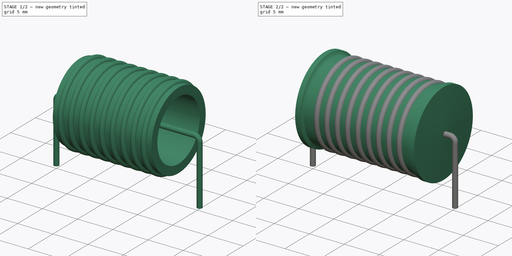
[diagram: build sequence overview — one tinted view per stage of 2, left to right]
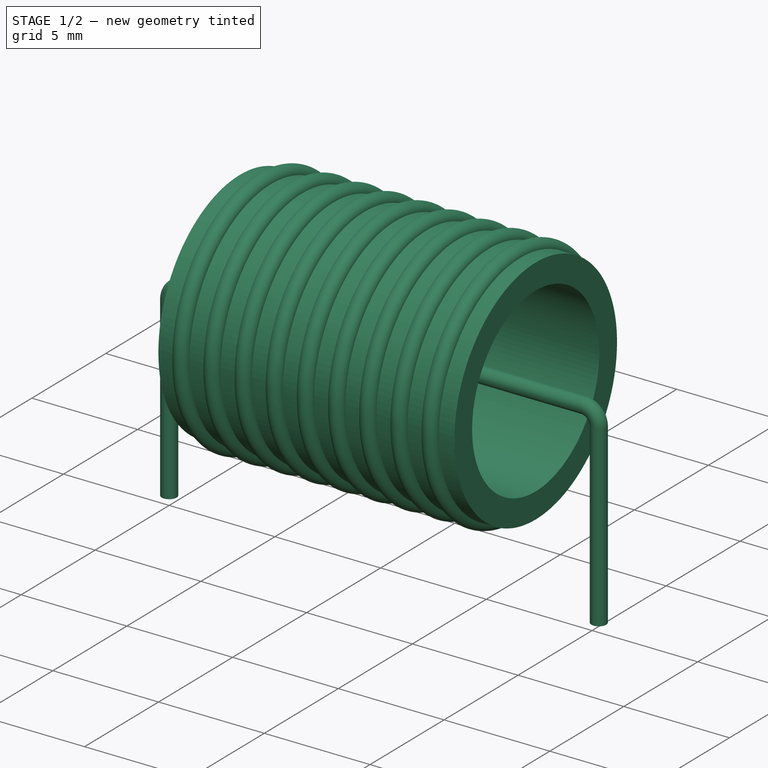
[diagram: stage 1 of 2 — iso view after this stage's code; geometry added in this stage tinted green]
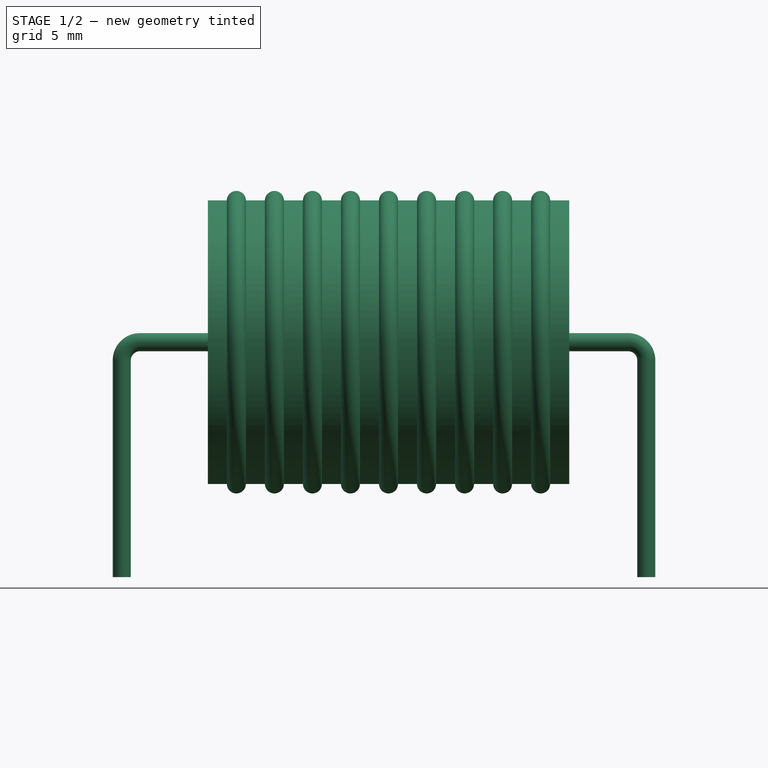
[diagram: stage 1 of 2 — front view after this stage's code; geometry added in this stage tinted green]
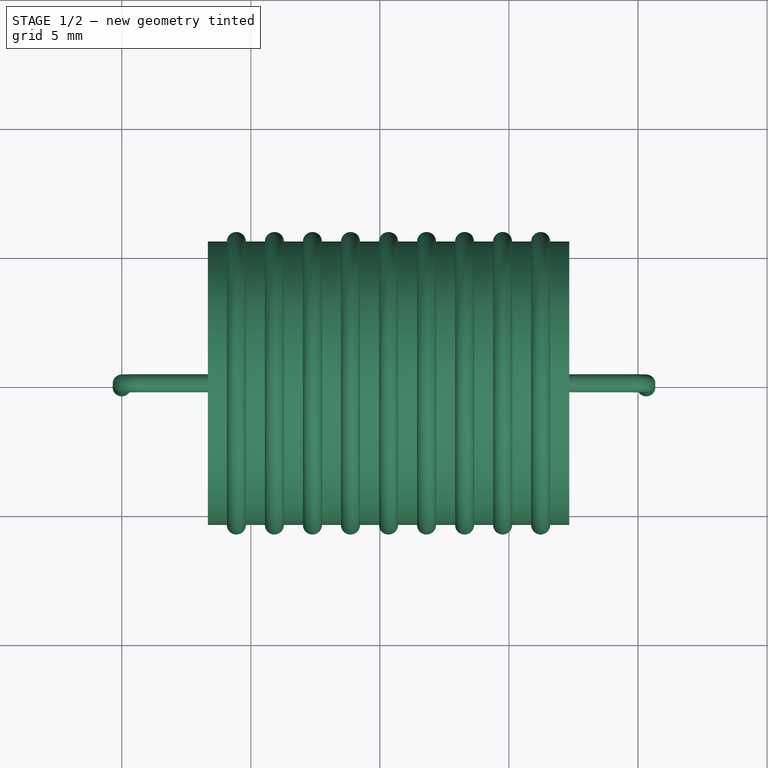
[diagram: stage 1 of 2 — top view after this stage's code; geometry added in this stage tinted green]
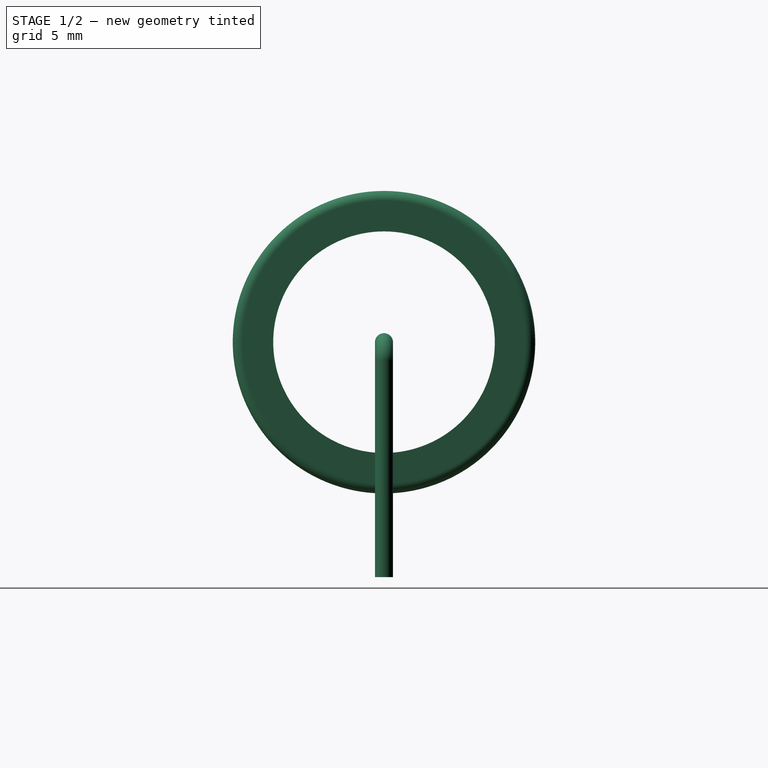
[diagram: stage 1 of 2 — right view after this stage's code; geometry added in this stage tinted green]
FCSTD DOCUMENT  (FreeCAD 0.16R6703 (Git))
Label: L_Axial_L17.5mm_D12.0mm_P20.32mm_Horizontal_Vishay_IM-10-46
License: All rights reserved
LicenseURL: http://en.wikipedia.org/wiki/All_rights_reserved
objects: Sketcher::SketchObject×4, PartDesign::Revolution×2, Spreadsheet::Sheet×1, Part::Sweep×1
note: 9 computed .brp shape members not serialized (recipe doc carries the construction recipe); baked Part::Feature solids carry a one-line shape summary decoded from their .brp

FEATURE [Spreadsheet::Sheet] Spreadsheet  label="dimensions"
  cells = A1=L; B1(L)=17.5; A2=d; B2(d)=12; C2=0; A3=RM; B3(RM)=20.32; C3=0; A4=d_wire; B4(d_wire)=0.7
FEATURE [Sketcher::SketchObject] Sketch
  Placement = pos=(0,0,-2) rot=(0,0,1;0rad)
  expr: Constraints[1] = dimensions.d_wire / 2
  sketch-geometry (1):
    g0: Circle CenterX=0 CenterY=0 CenterZ=0 NormalX=0 NormalY=0 NormalZ=1 Radius=0.35
  constraints (2):
    c: Coincident(g0,g-1)
    c: Radius(g0) = 0.35
FEATURE [Part::Sweep] Sweep
  Frenet = false
  Sections = -> [Sketch]
  Solid = true
  Spine = -> Sketch001
  Transition = 1
FEATURE [Sketcher::SketchObject] Sketch003  label="Axis001"
  Placement = pos=(0,0,0) rot=(1,0,0;1.5708rad)
  expr: Constraints[83] = dimensions.L * 0.8 / 19
  expr: Constraints[81] = dimensions.L * 0.8 / 19 / 2
  expr: Constraints[62] = dimensions.d / 2 - dimensions.L * 0.029
  expr: Constraints[70] = dimensions.d * 0.1
  expr: Constraints[78] = dimensions.L * 0.8 / 19 / 2
  expr: Constraints[6] = dimensions.d / 2 + 0.1
  expr: Constraints[72] = dimensions.L * 0.08500000000000001
  expr: Constraints[76] = dimensions.L * 0.8 / 19 / 2
  expr: Constraints[37] = dimensions.L * 0.8 / 19 / 2
  expr: Constraints[5] = (dimensions.RM - dimensions.L * 0.95) / 2
  expr: Constraints[75] = dimensions.L * 0.8 / 19 / 2
  expr: Constraints[80] = dimensions.L * 0.8 / 19 / 2
  expr: Constraints[79] = dimensions.L * 0.8 / 19 / 2
  expr: Constraints[82] = dimensions.L * 0.8 / 19 / 2
  expr: Constraints[77] = dimensions.L * 0.8 / 19 / 2
  sketch-geometry (26):
    g0: LineSegment [constr] StartX=1.8475 StartY=6.1 StartZ=0 EndX=1.8475 EndY=0 EndZ=0
    g1: LineSegment [constr] StartX=1.8475 StartY=0 StartZ=0 EndX=0 EndY=0 EndZ=0
    g2: LineSegment [constr] StartX=106.607 StartY=-10.5398 StartZ=0 EndX=-91.3675 EndY=-10.5398 EndZ=0
    g3: LineSegment [constr] StartX=1.8475 StartY=6.1 StartZ=0 EndX=11.2525 EndY=6.1 EndZ=0
    g4: ArcOfCircle CenterX=4.44026 CenterY=11.5925 CenterZ=0 NormalX=0 NormalY=0 NormalZ=1 Radius=0.368421 StartAngle=0 EndAngle=3.14159
    g5: ArcOfCircle CenterX=5.91395 CenterY=11.5925 CenterZ=0 NormalX=0 NormalY=0 NormalZ=1 Radius=0.368421 StartAngle=0 EndAngle=3.14159
    g6: ArcOfCircle CenterX=7.38763 CenterY=11.5925 CenterZ=0 NormalX=0 NormalY=0 NormalZ=1 Radius=0.368421 StartAngle=0 EndAngle=3.14159
    g7: ArcOfCircle CenterX=8.86132 CenterY=11.5925 CenterZ=0 NormalX=0 NormalY=0 NormalZ=1 Radius=0.368421 StartAngle=0 EndAngle=3.14159
    g8: ArcOfCircle CenterX=10.335 CenterY=11.5925 CenterZ=0 NormalX=0 NormalY=0 NormalZ=1 Radius=0.368421 StartAngle=0 EndAngle=3.14159
    g9: ArcOfCircle CenterX=11.8087 CenterY=11.5925 CenterZ=0 NormalX=0 NormalY=0 NormalZ=1 Radius=0.368421 StartAngle=0 EndAngle=3.14159
    g10: ArcOfCircle CenterX=13.2824 CenterY=11.5925 CenterZ=0 NormalX=0 NormalY=0 NormalZ=1 Radius=0.368421 StartAngle=0 EndAngle=3.14159
    g11: ArcOfCircle CenterX=14.7561 CenterY=11.5925 CenterZ=0 NormalX=0 NormalY=0 NormalZ=1 Radius=0.368421 StartAngle=0 EndAngle=3.14159
    g12: ArcOfCircle CenterX=16.2297 CenterY=11.5925 CenterZ=0 NormalX=0 NormalY=0 NormalZ=1 Radius=0.368421 StartAngle=0 EndAngle=3.14159
    g13: LineSegment StartX=3.335 StartY=11.5925 StartZ=0 EndX=4.07184 EndY=11.5925 EndZ=0
    g14: LineSegment StartX=4.80868 StartY=11.5925 StartZ=0 EndX=5.54553 EndY=11.5925 EndZ=0
    g15: LineSegment StartX=6.28237 StartY=11.5925 StartZ=0 EndX=7.01921 EndY=11.5925 EndZ=0
    g16: LineSegment StartX=7.75605 StartY=11.5925 StartZ=0 EndX=8.49289 EndY=11.5925 EndZ=0
    g17: LineSegment StartX=9.22974 StartY=11.5925 StartZ=0 EndX=9.96658 EndY=11.5925 EndZ=0
    g18: LineSegment StartX=10.7034 StartY=11.5925 StartZ=0 EndX=11.4403 EndY=11.5925 EndZ=0
    g19: LineSegment StartX=12.1771 StartY=11.5925 StartZ=0 EndX=12.9139 EndY=11.5925 EndZ=0
    g20: LineSegment StartX=13.6508 StartY=11.5925 StartZ=0 EndX=14.3876 EndY=11.5925 EndZ=0
    g21: LineSegment StartX=15.1245 StartY=11.5925 StartZ=0 EndX=15.8613 EndY=11.5925 EndZ=0
    g22: LineSegment StartX=16.5982 StartY=11.5925 StartZ=0 EndX=17.335 EndY=11.5925 EndZ=0
    g23: LineSegment StartX=3.335 StartY=11.5925 StartZ=0 EndX=3.335 EndY=10.3925 EndZ=0
    g24: LineSegment StartX=3.335 StartY=10.3925 StartZ=0 EndX=17.335 EndY=10.3925 EndZ=0
    g25: LineSegment StartX=17.335 StartY=10.3925 StartZ=0 EndX=17.335 EndY=11.5925 EndZ=0
  constraints (84):
    c: DistanceX(g0,g3) = 9.405
    c: Vertical(g0)
    c: Coincident(g1,g0)
    c: Coincident(g1,g-1)
    c: Horizontal(g1)
    c: DistanceX(g1,g1) = 1.8475
    c: DistanceY(g0,g0) = 6.1
    c: Coincident(g13,g4)
    c: Coincident(g14,g4)
    c: Coincident(g14,g5)
    c: Coincident(g15,g5)
    c: Coincident(g15,g6)
    c: Coincident(g16,g6)
    c: Coincident(g16,g7)
    c: Coincident(g17,g7)
    c: Coincident(g17,g8)
    c: Horizontal(g17)
    c: Coincident(g18,g8)
    c: Coincident(g18,g9)
    c: Coincident(g19,g9)
    c: Coincident(g19,g10)
    c: Coincident(g20,g11)
    c: Horizontal(g20)
    c: Coincident(g21,g11)
    c: Coincident(g21,g12)
    c: Horizontal(g21)
    c: Horizontal(g22)
    c: Equal(g14,g13)
    c: Equal(g13,g15)
    c: Equal(g15,g16)
    c: Equal(g16,g17)
    c: Equal(g17,g18)
    c: Equal(g18,g19)
    c: Equal(g19,g20)
    c: Equal(g20,g21)
    c: Equal(g21,g22)
    c: Coincident(g10,g20)
    c: Radius(g8) = 0.368421
    c: Coincident(g22,g12)
    c: Horizontal(g14)
    c: Horizontal(g15)
    c: Horizontal(g16)
    c: Horizontal(g18)
    c: Horizontal(g19)
    c: DistanceY(g12,g12) = 0
    c: DistanceY(g11,g11) = 0
    c: DistanceY(g10,g10) = 0
    c: DistanceY(g9,g9) = 0
    c: DistanceY(g8,g8) = 0
    c: DistanceY(g7,g7) = 0
    c: DistanceY(g4,g4) = 0
    c: DistanceY(g5,g5) = 0
    c: DistanceY(g4,g4) = 0
    c: DistanceY(g5,g5) = 0
    c: DistanceY(g6,g6) = 0
    c: DistanceY(g6,g6) = 0
    c: DistanceY(g7,g7) = 0
    c: DistanceY(g8,g8) = 0
    c: DistanceY(g9,g9) = 0
    c: DistanceY(g10,g10) = 0
    c: DistanceY(g11,g11) = 0
    c: DistanceY(g12,g12) = 0
    c: DistanceY(g0,g13) = 5.4925
    c: Horizontal(g13)
    c: Coincident(g23,g13)
    c: Vertical(g23)
    c: Horizontal(g24)
    c: Coincident(g25,g24)
    c: Coincident(g25,g22)
    c: Vertical(g25)
    c: DistanceY(g24,g22) = 1.2
    c: Coincident(g23,g24)
    c: DistanceX(g0,g23) = 1.4875
    c: Horizontal(g3)
    c: Coincident(g3,g0)
    c: Radius(g4) = 0.368421
    c: Radius(g5) = 0.368421
    c: Radius(g6) = 0.368421
    c: Radius(g7) = 0.368421
    c: Radius(g10) = 0.368421
    c: Radius(g9) = 0.368421
    c: Radius(g11) = 0.368421
    c: Radius(g12) = 0.368421
    c: DistanceX(g13,g13) = 0.736842
FEATURE [PartDesign::Revolution] Revolution001
  Angle = 360
  Axis = (9.405,0,0)
  Base = (1.8475,0,6.1)
  Placement = pos=(0,0,0) rot=(1,0,0;1.5708rad)
  ReferenceAxis = -> Sketch003 [Axis3]
  Sketch = -> Sketch003
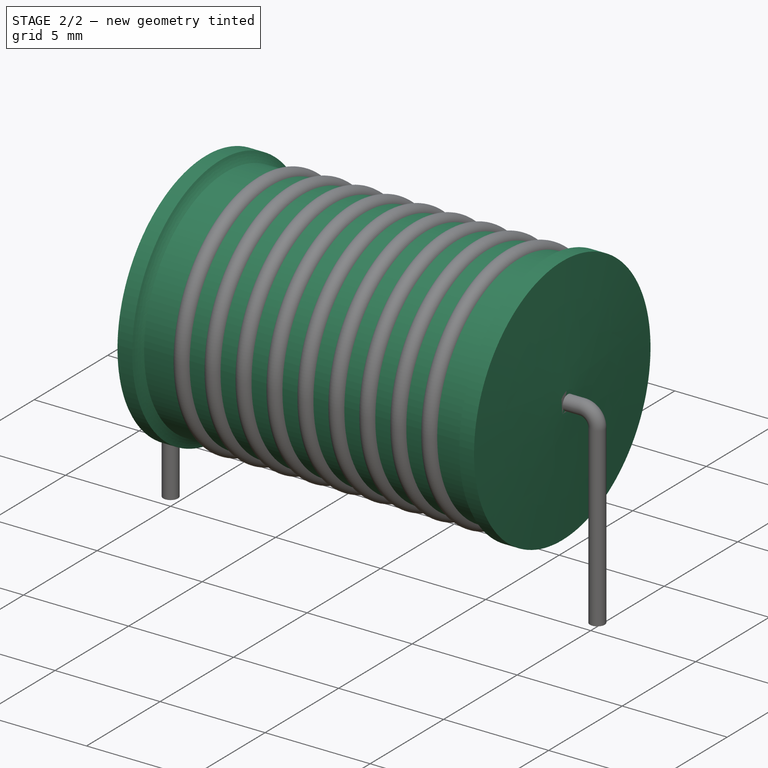
[diagram: stage 2 of 2 — iso view after this stage's code; geometry added in this stage tinted green]
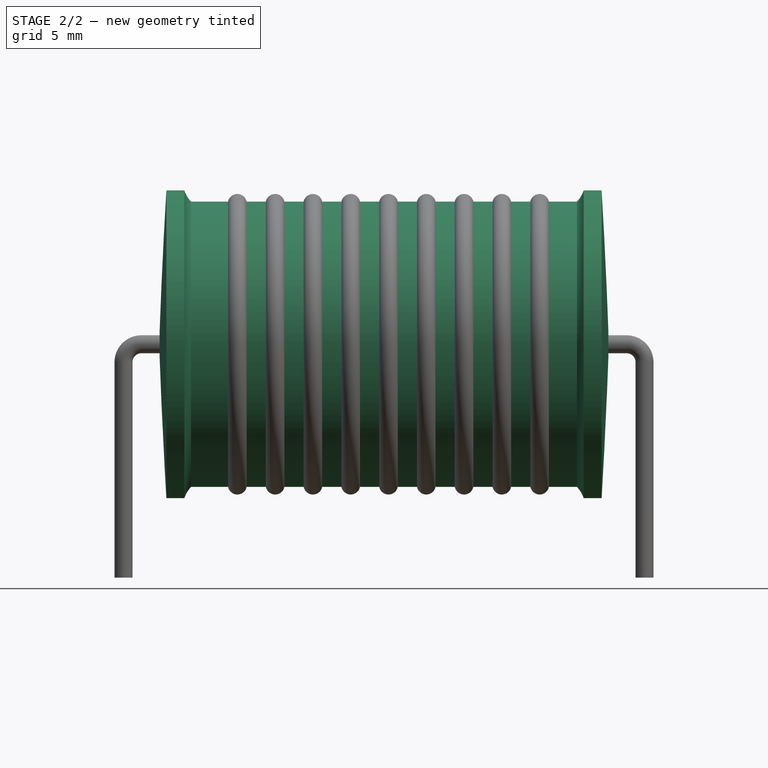
[diagram: stage 2 of 2 — front view after this stage's code; geometry added in this stage tinted green]
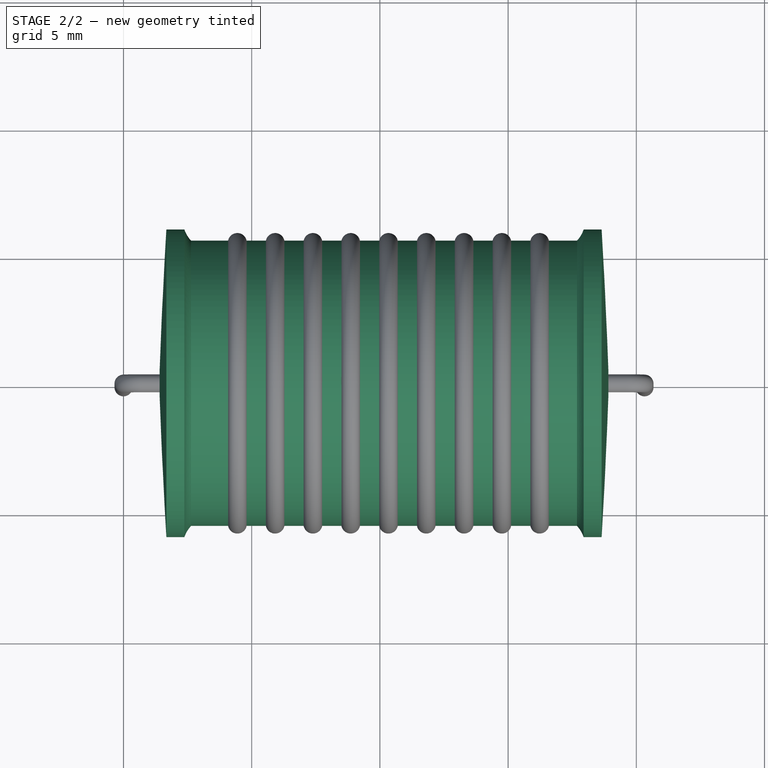
[diagram: stage 2 of 2 — top view after this stage's code; geometry added in this stage tinted green]
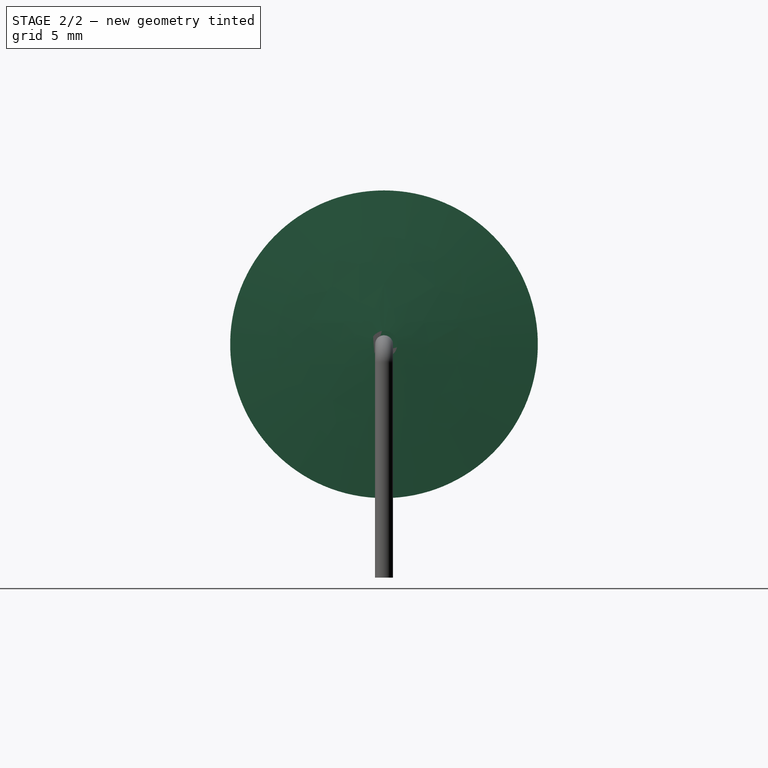
[diagram: stage 2 of 2 — right view after this stage's code; geometry added in this stage tinted green]
FEATURE [Sketcher::SketchObject] Sketch001
  Placement = pos=(0,0,0) rot=(1,0,0;1.5708rad)
  expr: Constraints[15] = dimensions.d_wire
  expr: Constraints[20] = dimensions.d_wire
  expr: Constraints[18] = dimensions.d / 2 + 0.1
  expr: Constraints[12] = dimensions.RM
  expr: Constraints[7] = dimensions.d_wire
  sketch-geometry (7):
    g0: LineSegment StartX=0 StartY=-3 StartZ=0 EndX=0 EndY=5.4 EndZ=0
    g1: ArcOfCircle CenterX=0.7 CenterY=5.4 CenterZ=0 NormalX=0 NormalY=0 NormalZ=1 Radius=0.7 StartAngle=1.57079 EndAngle=3.14159
    g2: LineSegment [constr] StartX=0 StartY=5.4 StartZ=0 EndX=0.7 EndY=5.4 EndZ=0
    g3: LineSegment [constr] StartX=0.7 StartY=5.4 StartZ=0 EndX=0.7 EndY=6.1 EndZ=0
    g4: LineSegment StartX=0.700007 StartY=6.1 StartZ=0 EndX=19.62 EndY=6.1 EndZ=0
    g5: LineSegment StartX=20.32 StartY=5.4 StartZ=0 EndX=20.32 EndY=-3 EndZ=0
    g6: ArcOfCircle CenterX=19.62 CenterY=5.4 CenterZ=0 NormalX=0 NormalY=0 NormalZ=1 Radius=0.7 StartAngle=0 EndAngle=1.5708
  constraints (23):
    c: Vertical(g0)
    c: Coincident(g1,g0)
    c: Coincident(g2,g0)
    c: Coincident(g2,g1)
    c: Horizontal(g2)
    c: Coincident(g3,g1)
    c: Vertical(g3)
    c: DistanceY(g3,g3) = 0.7
    c: Coincident(g4,g1)
    c: Horizontal(g4)
    c: Vertical(g5)
    c: Equal(g5,g0)
    c: DistanceX(g-1,g5) = 20.32
    c: Coincident(g6,g4)
    c: Coincident(g6,g5)
    c: DistanceX(g6,g5) = 0.7
    c: PointOnObject(g0,g-2)
    c: DistanceY(g0,g-1) = 3
    c: DistanceY(g-1,g1) = 6.1
    c: DistanceY(g0,g5) = 0
    c: DistanceX(g0,g1) = 0.7
    c: DistanceX(g6,g4) = 0
    c: DistanceY(g6,g5) = 0
FEATURE [Sketcher::SketchObject] Sketch002  label="Axis0"
  Placement = pos=(0,0,0) rot=(1,0,0;1.5708rad)
  expr: Constraints[6] = (dimensions.RM - dimensions.L) / 2
  expr: Constraints[37] = dimensions.L * 0.05
  expr: Constraints[8] = dimensions.d / 2
  expr: Constraints[25] = dimensions.d_wire * 0.75
  expr: Constraints[13] = dimensions.L * 0.04
  expr: Constraints[7] = dimensions.d / 2 + 0.1
  expr: Constraints[17] = dimensions.L * 0.025
  expr: Constraints[44] = Spreadsheet.L * (1 - 2 * 0.07000000000000001)
  expr: Constraints[15] = Spreadsheet.L * 0.015
  expr: Constraints[16] = dimensions.L * 0.015
  expr: Constraints[20] = 0.015 * Spreadsheet.L
  expr: Constraints[21] = dimensions.d / 2
  expr: Constraints[43] = dimensions.L * 0.05
  expr: Constraints[42] = Spreadsheet.L * 0.015
  expr: Constraints[41] = dimensions.L * 0.04
  sketch-geometry (15):
    g0: LineSegment [constr] StartX=1.41 StartY=6.1 StartZ=0 EndX=18.91 EndY=6.1 EndZ=0
    g1: LineSegment [constr] StartX=1.41 StartY=6.1 StartZ=0 EndX=1.41 EndY=0 EndZ=0
    g2: LineSegment [constr] StartX=1.41 StartY=0 StartZ=0 EndX=0 EndY=0 EndZ=0
    g3: LineSegment [constr] StartX=1.6725 StartY=12.1 StartZ=0 EndX=1.6725 EndY=6.1 EndZ=0
    g4: LineSegment StartX=1.6725 StartY=12.1 StartZ=0 EndX=2.3725 EndY=12.1 EndZ=0
    g5: ArcOfCircle CenterX=3.51 CenterY=12.485 CenterZ=0 NormalX=0 NormalY=0 NormalZ=1 Radius=1.20089 StartAngle=3.46795 EndAngle=3.89607
    g6: ArcOfCircle CenterX=16.81 CenterY=12.485 CenterZ=0 NormalX=0 NormalY=0 NormalZ=1 Radius=1.20089 StartAngle=5.52871 EndAngle=5.95683
    g7: LineSegment StartX=17.9475 StartY=12.1 StartZ=0 EndX=18.6475 EndY=12.1 EndZ=0
    g8: LineSegment [constr] StartX=230.513 StartY=-1.61558 StartZ=0 EndX=-210.193 EndY=-1.61558 EndZ=0
    g9: LineSegment StartX=1.41 StartY=6.1 StartZ=0 EndX=18.91 EndY=6.1 EndZ=0
    g10: LineSegment StartX=1.41 StartY=6.1 StartZ=0 EndX=1.41 EndY=6.625 EndZ=0
    g11: ArcOfCircle CenterX=230.513 CenterY=-1.61558 CenterZ=0 NormalX=0 NormalY=0 NormalZ=1 Radius=229.251 StartAngle=3.08173 EndAngle=3.10564
    g12: LineSegment StartX=18.91 StartY=6.1 StartZ=0 EndX=18.91 EndY=6.625 EndZ=0
    g13: ArcOfCircle CenterX=-210.193 CenterY=-1.61558 CenterZ=0 NormalX=0 NormalY=0 NormalZ=1 Radius=229.251 StartAngle=0.0359535 EndAngle=0.0598636
    g14: LineSegment StartX=2.635 StartY=11.6625 StartZ=0 EndX=17.685 EndY=11.6625 EndZ=0
  constraints (45):
    c: Horizontal(g0)
    c: Coincident(g1,g0)
    c: Vertical(g1)
    c: Coincident(g2,g1)
    c: Coincident(g2,g-1)
    c: Horizontal(g2)
    c: DistanceX(g2,g2) = 1.41
    c: DistanceY(g1,g1) = 6.1
    c: DistanceY(g3,g3) = 6
    c: PointOnObject(g3,g0)
    c: Perpendicular(g0,g3)
    c: Coincident(g4,g3)
    c: Horizontal(g4)
    c: DistanceX(g4,g4) = 0.7
    c: Coincident(g5,g4)
    c: DistanceX(g4,g5) = 0.2625
    c: DistanceX(g0,g3) = 0.2625
    c: DistanceY(g5,g4) = 0.4375
    c: Coincident(g7,g6)
    c: Horizontal(g7)
    c: DistanceX(g7,g0) = 0.2625
    c: DistanceY(g0,g6) = 6
    c: Parallel(g0,g8)
    c: Coincident(g9,g0)
    c: Vertical(g10)
    c: DistanceY(g10,g10) = 0.525
    c: Coincident(g11,g10)
    c: Coincident(g11,g3)
    c: Coincident(g11,g8)
    c: Coincident(g10,g0)
    c: Coincident(g12,g0)
    c: Vertical(g12)
    c: Equal(g12,g10)
    c: Coincident(g13,g12)
    c: Coincident(g13,g8)
    c: Coincident(g7,g13)
    c: Coincident(g9,g0)
    c: DistanceX(g5,g5) = 0.875
    c: Horizontal(g14)
    c: Coincident(g14,g6)
    c: Coincident(g14,g5)
    c: DistanceX(g7,g7) = 0.7
    c: DistanceX(g6,g6) = 0.2625
    c: DistanceX(g6,g6) = 0.875
    c: DistanceX(g14,g14) = 15.05
FEATURE [PartDesign::Revolution] Revolution
  Angle = 360
  Axis = (17.5,0,0)
  Base = (1.41,0,6.1)
  Placement = pos=(0,0,0) rot=(1,0,0;1.5708rad)
  ReferenceAxis = -> Sketch002 [Axis0]
  Sketch = -> Sketch002
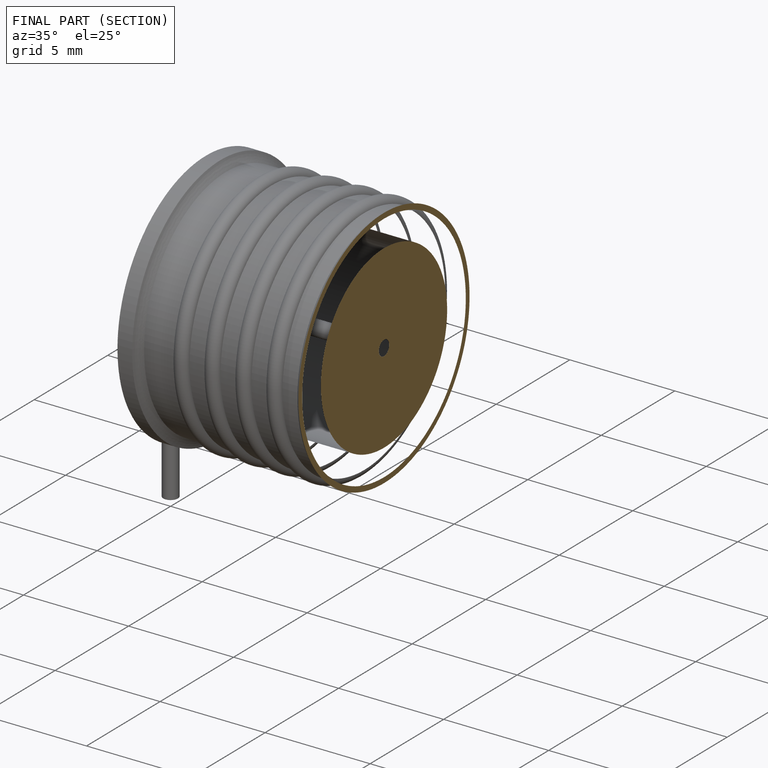
[diagram: finished part — half-section view (interior)]
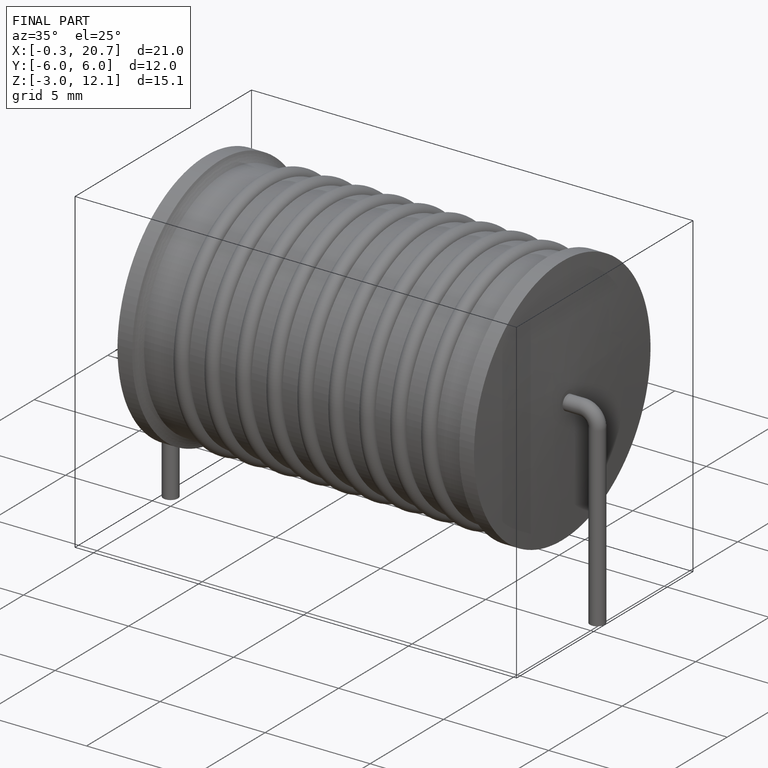
[diagram: finished part — iso view with bounding-box wireframe]
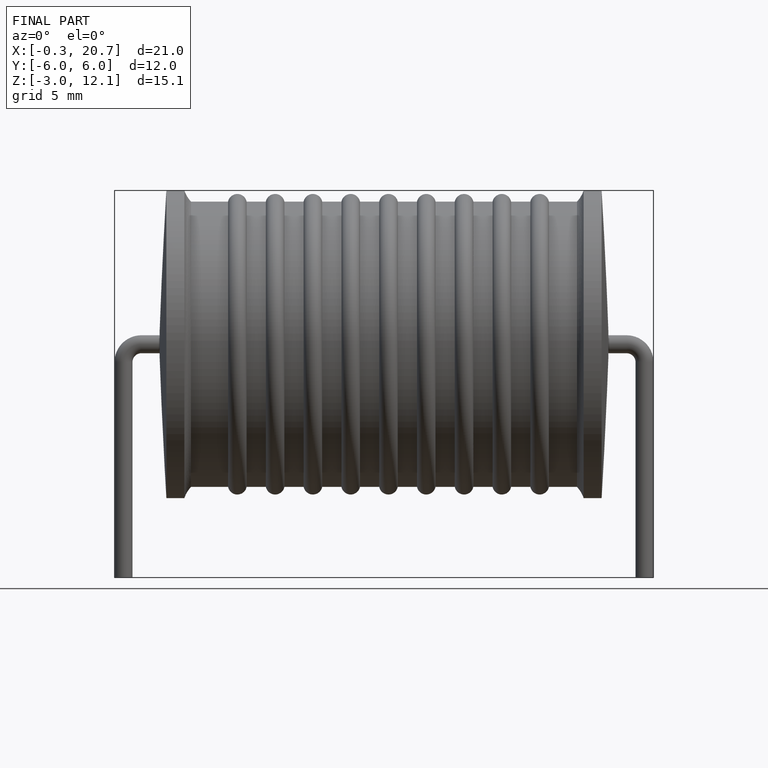
[diagram: finished part — front view with bounding-box wireframe]
